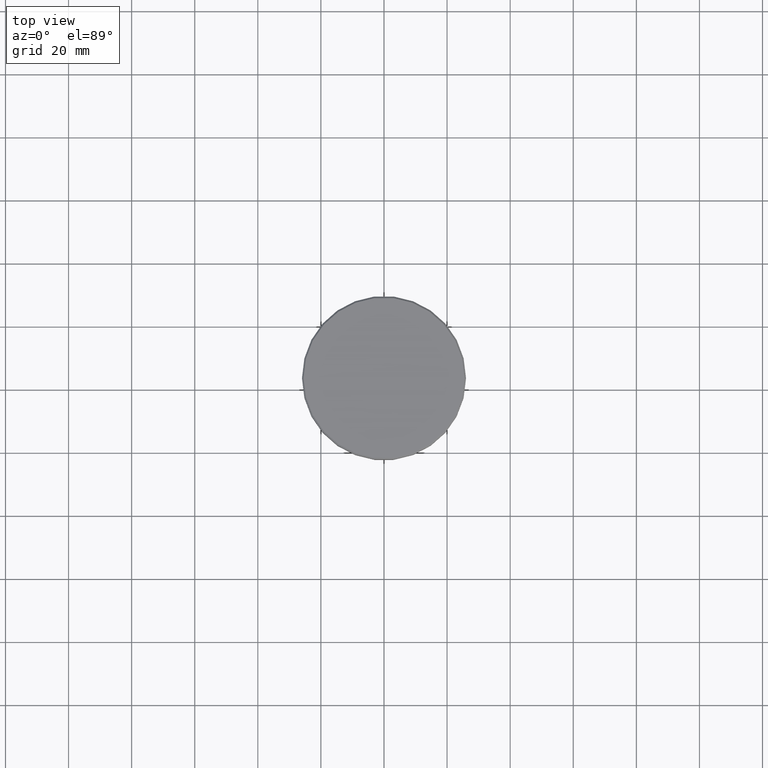
[diagram: clean part render]
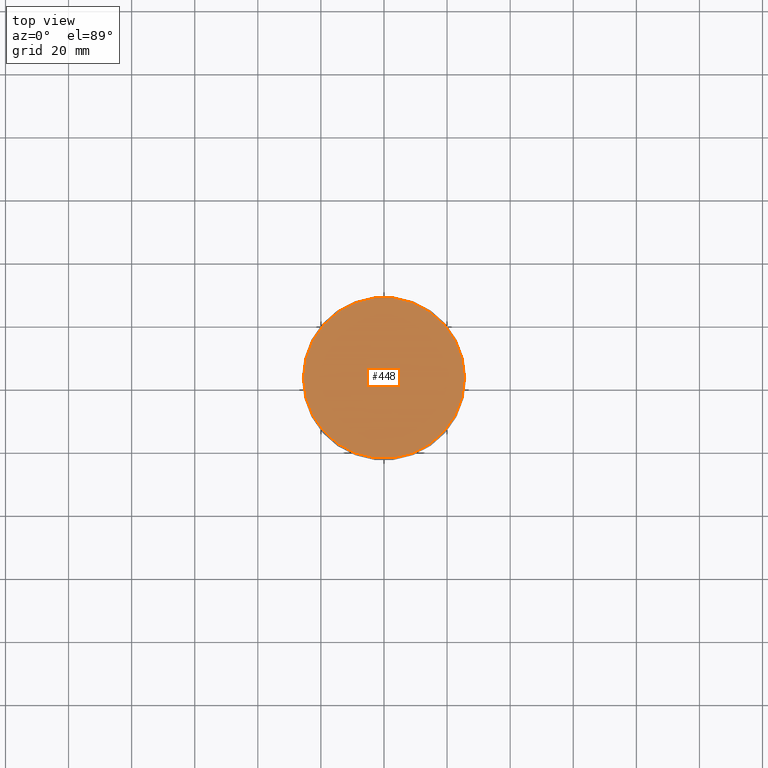
[diagram: same view with one face highlighted and labeled with its STEP entity id]
A machine part, top view. The second image highlights one B-rep face of the part: STEP entity #448.
In plain terms, the highlighted planar face has unit normal (0, -0, 1).
Its self-contained STEP definition (entity closure, byte-faithful):
#53 = AXIS2_PLACEMENT_3D ( 'NONE', #923, #821, #917 ) ;
#104 = EDGE_CURVE ( 'NONE', #364, #1043, #886, .T. ) ;
#185 = CARTESIAN_POINT ( 'NONE',  ( -25.49999999999997158, 0.000000000000000000, 0.000000000000000000 ) ) ;
#219 = CARTESIAN_POINT ( 'NONE',  ( 0.000000000000000000, 0.000000000000000000, 0.000000000000000000 ) ) ;
#229 = EDGE_CURVE ( 'NONE', #1043, #364, #408, .T. ) ;
#324 = ORIENTED_EDGE ( 'NONE', *, *, #229, .T. ) ;
#364 = VERTEX_POINT ( 'NONE', #418 ) ;
#408 = CIRCLE ( 'NONE', #444, 25.49999999999997158 ) ;
#418 = CARTESIAN_POINT ( 'NONE',  ( 25.49999999999997158, 3.153465507804432826E-15, 0.000000000000000000 ) ) ;
#423 = DIRECTION ( 'NONE',  ( 1.000000000000000000, 0.000000000000000000, 0.000000000000000000 ) ) ;
#440 = EDGE_LOOP ( 'NONE', ( #324, #517 ) ) ;
#444 = AXIS2_PLACEMENT_3D ( 'NONE', #219, #954, #1134 ) ;
#448 = ADVANCED_FACE ( 'NONE', ( #1146 ), #1165, .T. ) ;
#497 = DIRECTION ( 'NONE',  ( 0.000000000000000000, -0.000000000000000000, 1.000000000000000000 ) ) ;
#517 = ORIENTED_EDGE ( 'NONE', *, *, #104, .T. ) ;
#821 = DIRECTION ( 'NONE',  ( -0.000000000000000000, -0.000000000000000000, 1.000000000000000000 ) ) ;
#886 = CIRCLE ( 'NONE', #53, 25.49999999999997158 ) ;
#917 = DIRECTION ( 'NONE',  ( 1.000000000000000000, 0.000000000000000000, 0.000000000000000000 ) ) ;
#923 = CARTESIAN_POINT ( 'NONE',  ( 0.000000000000000000, 0.000000000000000000, 0.000000000000000000 ) ) ;
#954 = DIRECTION ( 'NONE',  ( -0.000000000000000000, -0.000000000000000000, 1.000000000000000000 ) ) ;
#1029 = AXIS2_PLACEMENT_3D ( 'NONE', #1067, #497, #423 ) ;
#1043 = VERTEX_POINT ( 'NONE', #185 ) ;
#1067 = CARTESIAN_POINT ( 'NONE',  ( 0.000000000000000000, 0.000000000000000000, 0.000000000000000000 ) ) ;
#1134 = DIRECTION ( 'NONE',  ( 1.000000000000000000, 0.000000000000000000, 0.000000000000000000 ) ) ;
#1146 = FACE_OUTER_BOUND ( 'NONE', #440, .T. ) ;
#1165 = PLANE ( 'NONE',  #1029 ) ;